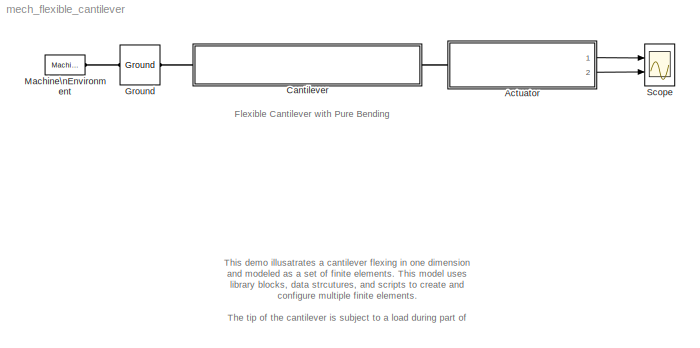
MODEL mech_flexible_cantilever
KIND model
CONFIG InitFcn = %-----------------------------------------\n% Defined in the block mask\n%-----------------------------------------\nfBeamElement.material = 'Mild Steel';\n\n% Beam element density (Kg/m^3)\nfBeamElement.density = 7600;\n\nfBeamElement.LengX = 1E-2;\nfBeamElement.LengY = 1E-2;\n\n% Beam element area of cross-section (m^2)\nfBeamElement.crossArea = fBeamElement.LengX * fBeamElement.LengY;\n\n% Beam...<+882ch>
CONFIG PreLoadFcn = %-----------------------------------------\n% Defined in the block mask\n%-----------------------------------------\nfBeamElement.material = 'Mild Steel';\n\n% Beam element density (Kg/m^3)\nfBeamElement.density = 7600;\n\nfBeamElement.LengX = 1E-2;\nfBeamElement.LengY = 1E-2;\n\n% Beam element area of cross-section (m^2)\nfBeamElement.crossArea = fBeamElement.LengX * fBeamElement.LengY;\n\n% Beam...<+882ch>
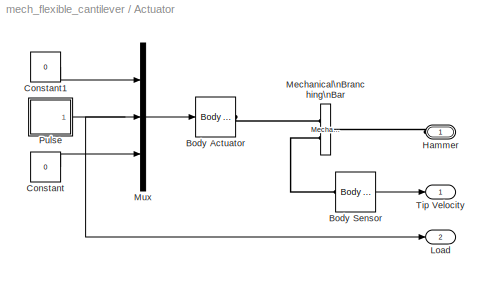
BLOCK [SubSystem] Actuator
  FunctionWithSeparateData = off
  MaskHideContents = off
  MinAlgLoopOccurrences = off
  Opaque = off
  Ports = [0, 2, 0, 0, 0, 1]
  PropExecContextOutsideSubsystem = off
  RTWSystemCode = Auto
  RequestExecContextInheritance = off
BLOCK [Reference] Actuator/Body Actuator  REF=mblibv1/Sensors & \nActuators/Body Actuator
  AccelerationUnits = m/s^2
  ActiveIO = on
  ActuationStyle = Force
  Angle = off
  AngleUnits = deg
  ArcAccelerationUnits = deg/s^2
  ArcVelocityUnits = deg/s
  ClassName = BodyActuatorForceTorque
  CoordPosition = on
  CoordPositionUnits = m
  DialogClass = MechanicalActuatorBlock
  DialogController = MECH.DynMechDlgSource
  Force = on
  ForceUnits = N
  FunctionWithSeparateData = off
  PhysicalDomain = Mechanical
  PortType = blob
  Ports = [1, 0, 0, 0, 0, 0, 1]
  RTWMemSecDataConstants = Inherit from model
  RTWMemSecDataInternal = Inherit from model
  RTWMemSecDataParameters = Inherit from model
  RTWMemSecFuncExecute = Inherit from model
  RTWMemSecFuncInitTerm = Inherit from model
  ReferenceFrame = Absolute (World)
  ShowPortLabels = FromPortIcon
  SourceBlock = mblibv1/Sensors & \nActuators/Body Actuator
  SourceType = Body Actuator
  SystemSampleTime = -1
  Torque = off
  TorqueUnits = N-m
  VelocityUnits = m/s
  Width = 3
BLOCK [Reference] Actuator/Body Sensor  REF=mblibv1/Sensors & \nActuators/Body Sensor
  Acceleration = off
  AccelerationUnits = m/s^2
  ActiveIO = on
  Angle = on
  AngleUnits = deg
  ArcAcceleration = off
  ArcAccelerationUnits = deg/s^2
  ArcVelocity = on
  ArcVelocityUnits = rad/s
  ClassName = BodySensor
  CoordPosition = off
  CoordPositionUnits = m
  DialogClass = MechanicalSensorBlock
  DialogController = MECH.DynMechDlgSource
  FunctionWithSeparateData = off
  Muxed = on
  OutputVector = [ 3 ]
  PhysicalDomain = Mechanical
  PortType = blob
  Ports = [0, 1, 0, 0, 0, 1]
  Pose = off
  Quaternion = on
  QuaternionDDT = off
  QuaternionDT = off
  QuaternionUnits = off
  RTWMemSecDataConstants = Inherit from model
  RTWMemSecDataInternal = Inherit from model
  RTWMemSecDataParameters = Inherit from model
  RTWMemSecFuncExecute = Inherit from model
  RTWMemSecFuncInitTerm = Inherit from model
  ReferenceFrame = Absolute (World)
  ShowPortLabels = FromPortIcon
  SourceBlock = mblibv1/Sensors & \nActuators/Body Sensor
  SourceType = Body Sensor
  SystemSampleTime = -1
  Velocity = off
  VelocityUnits = m/s
  Width = 3
BLOCK [Constant] Actuator/Constant
  OutDataType = sfix(16)
  OutScaling = 2^0
  Value = 0
BLOCK [Constant] Actuator/Constant1
  OutDataType = sfix(16)
  OutScaling = 2^0
  Value = 0
BLOCK [PMIOPort] Actuator/Hammer
  Port = 1
  Side = Left
BLOCK [Outport] Actuator/Load
  IconDisplay = Port number
  OutDataType = sfix(16)
  OutScaling = 2^0
  Port = 2
BLOCK [Reference] Actuator/Mechanical\nBranching\nBar  REF=mblibv1/Utilities/Mechanical\nBranching\nBar
  ClassName = BranchingBar
  DialogClass = MechanicalBranchingBarBlock
  DialogController = MECH.DynMechDlgSource
  LConnTagsString = _newl0
  LeftPortType = blob
  NumSAPorts = 2
  PhysicalDomain = mechanical
  Ports = [0, 0, 0, 0, 0, 1, 2]
  RConnTagsString = SA0|SA1
  RightPortType = blob
  SourceBlock = mblibv1/Utilities/Mechanical\nBranching\nBar
  SourceType = Mechanical Branching Bar
  SubClassName = Unknown
BLOCK [Mux] Actuator/Mux
  DisplayOption = bar
  Inputs = 3
  Ports = [3, 1]
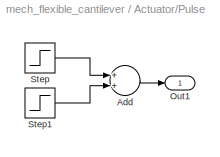
BLOCK [SubSystem] Actuator/Pulse
  FunctionWithSeparateData = off
  MaskHideContents = off
  MinAlgLoopOccurrences = off
  Opaque = off
  Ports = [0, 1]
  PropExecContextOutsideSubsystem = off
  RTWSystemCode = Auto
  RequestExecContextInheritance = off
BLOCK [Sum] Actuator/Pulse/Add
  InputSameDT = off
  OutDataType = sfix(16)
  OutDataTypeMode = Inherit via internal rule
  OutDataTypeStr = Inherit: Inherit via internal rule
  OutScaling = 2^-10
  Ports = [2, 1]
  SaturateOnIntegerOverflow = off
BLOCK [Outport] Actuator/Pulse/Out1
  IconDisplay = Port number
  OutDataType = sfix(16)
  OutScaling = 2^0
BLOCK [Step] Actuator/Pulse/Step
  After = 0
  Before = -50
  SampleTime = 0
  Time = 4
BLOCK [Step] Actuator/Pulse/Step1
  After = 0
  Before = 50
  SampleTime = 0
  Time = 0.5
BLOCK [Outport] Actuator/Tip Velocity
  IconDisplay = Port number
  OutDataType = sfix(16)
  OutScaling = 2^0
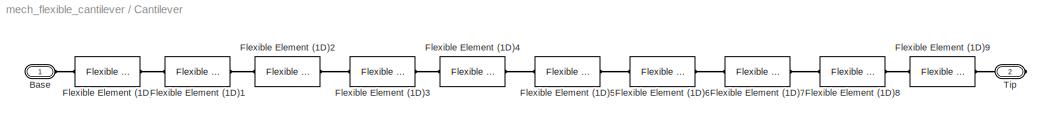
BLOCK [SubSystem] Cantilever
  FunctionWithSeparateData = off
  MaskHideContents = off
  MinAlgLoopOccurrences = off
  Opaque = off
  Ports = [0, 0, 0, 0, 0, 1, 1]
  PropExecContextOutsideSubsystem = off
  RTWSystemCode = Auto
  RequestExecContextInheritance = off
BLOCK [PMIOPort] Cantilever/Base
  Port = 1
  Side = Left
BLOCK [Reference] Cantilever/Flexible Element (1D)  REF=mech_flexible_element_lib/Flexible Element (1D)  (lib defined in mdl_9af6a22eb84a)
  FunctionWithSeparateData = off
  Inertia = fBeamElement.Inertia
  Ixx = fBeamElement.Ixx
  Iyy = 8.3333e-010
  Ports = [0, 0, 0, 0, 0, 1, 1]
  RTWMemSecDataConstants = Inherit from model
  RTWMemSecDataInternal = Inherit from model
  RTWMemSecDataParameters = Inherit from model
  RTWMemSecFuncExecute = Inherit from model
  RTWMemSecFuncInitTerm = Inherit from model
  ShowPortLabels = FromPortIcon
  SourceBlock = mech_flexible_element_lib/Flexible Element (1D)
  SystemSampleTime = -1
  beamDir = fBeamElement.beamDir
  cgLeng = fBeamElement.cgLeng
  crossArea = fBeamElement.crossArea
  density = fBeamElement.density
  length = fBeamElement.length
  matDamping = fBeamElement.matDamping
  material = Mild Steel
  shearM = 26E9
  youngsM = fBeamElement.youngsM
BLOCK [Reference] Cantilever/Flexible Element (1D)1  REF=mech_flexible_element_lib/Flexible Element (1D)  (lib defined in mdl_9af6a22eb84a)
  FunctionWithSeparateData = off
  Inertia = fBeamElement.Inertia
  Ixx = fBeamElement.Ixx
  Iyy = 8.3333e-010
  Ports = [0, 0, 0, 0, 0, 1, 1]
  RTWMemSecDataConstants = Inherit from model
  RTWMemSecDataInternal = Inherit from model
  RTWMemSecDataParameters = Inherit from model
  RTWMemSecFuncExecute = Inherit from model
  RTWMemSecFuncInitTerm = Inherit from model
  ShowPortLabels = FromPortIcon
  SourceBlock = mech_flexible_element_lib/Flexible Element (1D)
  SystemSampleTime = -1
  beamDir = fBeamElement.beamDir
  cgLeng = fBeamElement.cgLeng
  crossArea = fBeamElement.crossArea
  density = fBeamElement.density
  length = fBeamElement.length
  matDamping = fBeamElement.matDamping
  material = Mild Steel
  shearM = 26E9
  youngsM = fBeamElement.youngsM
BLOCK [Reference] Cantilever/Flexible Element (1D)2  REF=mech_flexible_element_lib/Flexible Element (1D)  (lib defined in mdl_9af6a22eb84a)
  FunctionWithSeparateData = off
  Inertia = fBeamElement.Inertia
  Ixx = fBeamElement.Ixx
  Iyy = 8.3333e-010
  Ports = [0, 0, 0, 0, 0, 1, 1]
  RTWMemSecDataConstants = Inherit from model
  RTWMemSecDataInternal = Inherit from model
  RTWMemSecDataParameters = Inherit from model
  RTWMemSecFuncExecute = Inherit from model
  RTWMemSecFuncInitTerm = Inherit from model
  ShowPortLabels = FromPortIcon
  SourceBlock = mech_flexible_element_lib/Flexible Element (1D)
  SystemSampleTime = -1
  beamDir = fBeamElement.beamDir
  cgLeng = fBeamElement.cgLeng
  crossArea = fBeamElement.crossArea
  density = fBeamElement.density
  length = fBeamElement.length
  matDamping = fBeamElement.matDamping
  material = Mild Steel
  shearM = 26E9
  youngsM = fBeamElement.youngsM
BLOCK [Reference] Cantilever/Flexible Element (1D)3  REF=mech_flexible_element_lib/Flexible Element (1D)  (lib defined in mdl_9af6a22eb84a)
  FunctionWithSeparateData = off
  Inertia = fBeamElement.Inertia
  Ixx = fBeamElement.Ixx
  Iyy = 8.3333e-010
  Ports = [0, 0, 0, 0, 0, 1, 1]
  RTWMemSecDataConstants = Inherit from model
  RTWMemSecDataInternal = Inherit from model
  RTWMemSecDataParameters = Inherit from model
  RTWMemSecFuncExecute = Inherit from model
  RTWMemSecFuncInitTerm = Inherit from model
  ShowPortLabels = FromPortIcon
  SourceBlock = mech_flexible_element_lib/Flexible Element (1D)
  SystemSampleTime = -1
  beamDir = fBeamElement.beamDir
  cgLeng = fBeamElement.cgLeng
  crossArea = fBeamElement.crossArea
  density = fBeamElement.density
  length = fBeamElement.length
  matDamping = fBeamElement.matDamping
  material = Mild Steel
  shearM = 26E9
  youngsM = fBeamElement.youngsM
BLOCK [Reference] Cantilever/Flexible Element (1D)4  REF=mech_flexible_element_lib/Flexible Element (1D)  (lib defined in mdl_9af6a22eb84a)
  FunctionWithSeparateData = off
  Inertia = fBeamElement.Inertia
  Ixx = fBeamElement.Ixx
  Iyy = 8.3333e-010
  Ports = [0, 0, 0, 0, 0, 1, 1]
  RTWMemSecDataConstants = Inherit from model
  RTWMemSecDataInternal = Inherit from model
  RTWMemSecDataParameters = Inherit from model
  RTWMemSecFuncExecute = Inherit from model
  RTWMemSecFuncInitTerm = Inherit from model
  ShowPortLabels = FromPortIcon
  SourceBlock = mech_flexible_element_lib/Flexible Element (1D)
  SystemSampleTime = -1
  beamDir = fBeamElement.beamDir
  cgLeng = fBeamElement.cgLeng
  crossArea = fBeamElement.crossArea
  density = fBeamElement.density
  length = fBeamElement.length
  matDamping = fBeamElement.matDamping
  material = Mild Steel
  shearM = 26E9
  youngsM = fBeamElement.youngsM
BLOCK [Reference] Cantilever/Flexible Element (1D)5  REF=mech_flexible_element_lib/Flexible Element (1D)  (lib defined in mdl_9af6a22eb84a)
  FunctionWithSeparateData = off
  Inertia = fBeamElement.Inertia
  Ixx = fBeamElement.Ixx
  Iyy = 8.3333e-010
  Ports = [0, 0, 0, 0, 0, 1, 1]
  RTWMemSecDataConstants = Inherit from model
  RTWMemSecDataInternal = Inherit from model
  RTWMemSecDataParameters = Inherit from model
  RTWMemSecFuncExecute = Inherit from model
  RTWMemSecFuncInitTerm = Inherit from model
  ShowPortLabels = FromPortIcon
  SourceBlock = mech_flexible_element_lib/Flexible Element (1D)
  SystemSampleTime = -1
  beamDir = fBeamElement.beamDir
  cgLeng = fBeamElement.cgLeng
  crossArea = fBeamElement.crossArea
  density = fBeamElement.density
  length = fBeamElement.length
  matDamping = fBeamElement.matDamping
  material = Mild Steel
  shearM = 26E9
  youngsM = fBeamElement.youngsM
BLOCK [Reference] Cantilever/Flexible Element (1D)6  REF=mech_flexible_element_lib/Flexible Element (1D)  (lib defined in mdl_9af6a22eb84a)
  FunctionWithSeparateData = off
  Inertia = fBeamElement.Inertia
  Ixx = fBeamElement.Ixx
  Iyy = 8.3333e-010
  Ports = [0, 0, 0, 0, 0, 1, 1]
  RTWMemSecDataConstants = Inherit from model
  RTWMemSecDataInternal = Inherit from model
  RTWMemSecDataParameters = Inherit from model
  RTWMemSecFuncExecute = Inherit from model
  RTWMemSecFuncInitTerm = Inherit from model
  ShowPortLabels = FromPortIcon
  SourceBlock = mech_flexible_element_lib/Flexible Element (1D)
  SystemSampleTime = -1
  beamDir = fBeamElement.beamDir
  cgLeng = fBeamElement.cgLeng
  crossArea = fBeamElement.crossArea
  density = fBeamElement.density
  length = fBeamElement.length
  matDamping = fBeamElement.matDamping
  material = Mild Steel
  shearM = 26E9
  youngsM = fBeamElement.youngsM
BLOCK [Reference] Cantilever/Flexible Element (1D)7  REF=mech_flexible_element_lib/Flexible Element (1D)  (lib defined in mdl_9af6a22eb84a)
  FunctionWithSeparateData = off
  Inertia = fBeamElement.Inertia
  Ixx = fBeamElement.Ixx
  Iyy = 8.3333e-010
  Ports = [0, 0, 0, 0, 0, 1, 1]
  RTWMemSecDataConstants = Inherit from model
  RTWMemSecDataInternal = Inherit from model
  RTWMemSecDataParameters = Inherit from model
  RTWMemSecFuncExecute = Inherit from model
  RTWMemSecFuncInitTerm = Inherit from model
  ShowPortLabels = FromPortIcon
  SourceBlock = mech_flexible_element_lib/Flexible Element (1D)
  SystemSampleTime = -1
  beamDir = fBeamElement.beamDir
  cgLeng = fBeamElement.cgLeng
  crossArea = fBeamElement.crossArea
  density = fBeamElement.density
  length = fBeamElement.length
  matDamping = fBeamElement.matDamping
  material = Mild Steel
  shearM = 26E9
  youngsM = fBeamElement.youngsM
BLOCK [Reference] Cantilever/Flexible Element (1D)8  REF=mech_flexible_element_lib/Flexible Element (1D)  (lib defined in mdl_9af6a22eb84a)
  FunctionWithSeparateData = off
  Inertia = fBeamElement.Inertia
  Ixx = fBeamElement.Ixx
  Iyy = 8.3333e-010
  Ports = [0, 0, 0, 0, 0, 1, 1]
  RTWMemSecDataConstants = Inherit from model
  RTWMemSecDataInternal = Inherit from model
  RTWMemSecDataParameters = Inherit from model
  RTWMemSecFuncExecute = Inherit from model
  RTWMemSecFuncInitTerm = Inherit from model
  ShowPortLabels = FromPortIcon
  SourceBlock = mech_flexible_element_lib/Flexible Element (1D)
  SystemSampleTime = -1
  beamDir = fBeamElement.beamDir
  cgLeng = fBeamElement.cgLeng
  crossArea = fBeamElement.crossArea
  density = fBeamElement.density
  length = fBeamElement.length
  matDamping = fBeamElement.matDamping
  material = Mild Steel
  shearM = 26E9
  youngsM = fBeamElement.youngsM
BLOCK [Reference] Cantilever/Flexible Element (1D)9  REF=mech_flexible_element_lib/Flexible Element (1D)  (lib defined in mdl_9af6a22eb84a)
  FunctionWithSeparateData = off
  Inertia = fBeamElement.Inertia
  Ixx = fBeamElement.Ixx
  Iyy = 8.3333e-010
  Ports = [0, 0, 0, 0, 0, 1, 1]
  RTWMemSecDataConstants = Inherit from model
  RTWMemSecDataInternal = Inherit from model
  RTWMemSecDataParameters = Inherit from model
  RTWMemSecFuncExecute = Inherit from model
  RTWMemSecFuncInitTerm = Inherit from model
  ShowPortLabels = FromPortIcon
  SourceBlock = mech_flexible_element_lib/Flexible Element (1D)
  SystemSampleTime = -1
  beamDir = fBeamElement.beamDir
  cgLeng = fBeamElement.cgLeng
  crossArea = fBeamElement.crossArea
  density = fBeamElement.density
  length = fBeamElement.length
  matDamping = fBeamElement.matDamping
  material = Mild Steel
  shearM = 26E9
  youngsM = fBeamElement.youngsM
BLOCK [PMIOPort] Cantilever/Tip
  Port = 2
  Side = Right
BLOCK [Reference] Ground  REF=mblibv1/Bodies/Ground
  ClassName = Ground
  CoordPosition = [0 0 0]
  CoordPositionUnits = m
  DialogClass = GroundBlock
  DialogController = MECH.DynMechDlgSource
  FunctionWithSeparateData = off
  LeftPortType = env
  MachineId = [0 0]
  PhysicalDomain = Mechanical
  Ports = [0, 0, 0, 0, 0, 1, 1]
  RTWMemSecDataConstants = Inherit from model
  RTWMemSecDataInternal = Inherit from model
  RTWMemSecDataParameters = Inherit from model
  RTWMemSecFuncExecute = Inherit from model
  RTWMemSecFuncInitTerm = Inherit from model
  RightPortType = workingframe
  ShowEnvPort = on
  ShowPortLabels = FromPortIcon
  SourceBlock = mblibv1/Bodies/Ground
  SourceType = Ground
  StateVectorMgrId = -1
  SystemSampleTime = -1
  UserData = DataTag0
  UserDataPersistent = on
BLOCK [Reference] Machine\nEnvironment  REF=mblibv1/Bodies/Machine\nEnvironment
  AnalysisType = Forward dynamics
  AngularAssemblyTolerance = 1e-3
  AngularAssemblyToleranceUnits = rad
  ClassName = Environment
  ConstraintAbsTolerance = 1e-4
  ConstraintRelTolerance = 1e-4
  ConstraintSolverType = Stabilizing
  DialogController = MECH.DialogSource
  DialogTemplateClass = MECH.MachineEnvironment
  Dimensionality = Auto-detect
  FunctionWithSeparateData = off
  Gravity = [0 -9.81 0]
  GravityAsSignal = off
  GravityUnits = m/s^2
  LinearAssemblyTolerance = 1e-3
  LinearAssemblyToleranceUnits = m
  PerturbationSize = 1e-5
  PhysicalDomain = Mechanical
  PortType = env
  Ports = [0, 0, 0, 0, 0, 0, 1]
  RTWMemSecDataConstants = Inherit from model
  RTWMemSecDataInternal = Inherit from model
  RTWMemSecDataParameters = Inherit from model
  RTWMemSecFuncExecute = Inherit from model
  RTWMemSecFuncInitTerm = Inherit from model
  RedundancyAnalysisTolerance = 1e-14
  RedundancyAnalysisToleranceType = Automatically select tolerance
  ShowPortLabels = FromPortIcon
  SourceBlock = mblibv1/Bodies/Machine\nEnvironment
  SourceType = Machine Environment
  StatePerturbationType = Fixed
  SyncWhenCopied = off
  SystemSampleTime = -1
  Tag = Factory ground
  UseRobustSingularityHandling = off
  VisualizeMachine = on
BLOCK [Scope] Scope
  DataFormat = StructureWithTime
  Floating = off
  NumInputPorts = 2
  Ports = [2]
  SampleTime = 0
  TimeRange = 10
  YMax = 10~10
  YMin = -10~-60
ANNOTATION (root): Flexible Cantilever with Pure Bending
ANNOTATION (root): This demo illusatrates a cantilever flexing in one dimension\nand modeled as a set of finite elements. This model uses\nlibrary blocks, data strcutures, and scripts to create and\nconfigure multiple finite elements.\n\nThe tip of the cantilever is subject to a load during part of\nthe simulation. The entire cantilever is also subject\nto its own weight under gravity.\n\n- References -\n\nKlaus-Jur...<+261ch>
LINE Actuator/Body Sensor:1 -> Actuator/Tip Velocity:1
LINE Actuator/Constant1:1 -> Actuator/Mux:1
LINE Actuator/Constant:1 -> Actuator/Mux:3
LINE Actuator/Mux:1 -> Actuator/Body Actuator:1
LINE Actuator/Pulse/Add:1 -> Actuator/Pulse/Out1:1
LINE Actuator/Pulse/Step1:1 -> Actuator/Pulse/Add:2
LINE Actuator/Pulse/Step:1 -> Actuator/Pulse/Add:1
NET Actuator/Pulse:1 -> Actuator/Load:1, Actuator/Mux:2
LINE Actuator:1 -> Scope:1
LINE Actuator:2 -> Scope:2
PLINE Actuator/Body Actuator:RConn1 -- Actuator/Mechanical\nBranching\nBar:RConn1
PLINE Actuator/Body Sensor:LConn1 -- Actuator/Mechanical\nBranching\nBar:RConn2
PLINE Actuator/Hammer:RConn1 -- Actuator/Mechanical\nBranching\nBar:LConn1
PLINE Actuator:LConn1 -- Cantilever:RConn1
PLINE Cantilever/Base:RConn1 -- Cantilever/Flexible Element (1D):LConn1
PLINE Cantilever/Flexible Element (1D)1:LConn1 -- Cantilever/Flexible Element (1D):RConn1
PLINE Cantilever/Flexible Element (1D)1:RConn1 -- Cantilever/Flexible Element (1D)2:LConn1
PLINE Cantilever/Flexible Element (1D)2:RConn1 -- Cantilever/Flexible Element (1D)3:LConn1
PLINE Cantilever/Flexible Element (1D)3:RConn1 -- Cantilever/Flexible Element (1D)4:LConn1
PLINE Cantilever/Flexible Element (1D)4:RConn1 -- Cantilever/Flexible Element (1D)5:LConn1
PLINE Cantilever/Flexible Element (1D)5:RConn1 -- Cantilever/Flexible Element (1D)6:LConn1
PLINE Cantilever/Flexible Element (1D)6:RConn1 -- Cantilever/Flexible Element (1D)7:LConn1
PLINE Cantilever/Flexible Element (1D)7:RConn1 -- Cantilever/Flexible Element (1D)8:LConn1
PLINE Cantilever/Flexible Element (1D)8:RConn1 -- Cantilever/Flexible Element (1D)9:LConn1
PLINE Cantilever/Flexible Element (1D)9:RConn1 -- Cantilever/Tip:RConn1
PLINE Cantilever:LConn1 -- Ground:RConn1
PLINE Ground:LConn1 -- Machine\nEnvironment:RConn1
note: NET lines group one-source signal fan-out (src -> all destinations, sorted); 1:1 wires keep LINE
